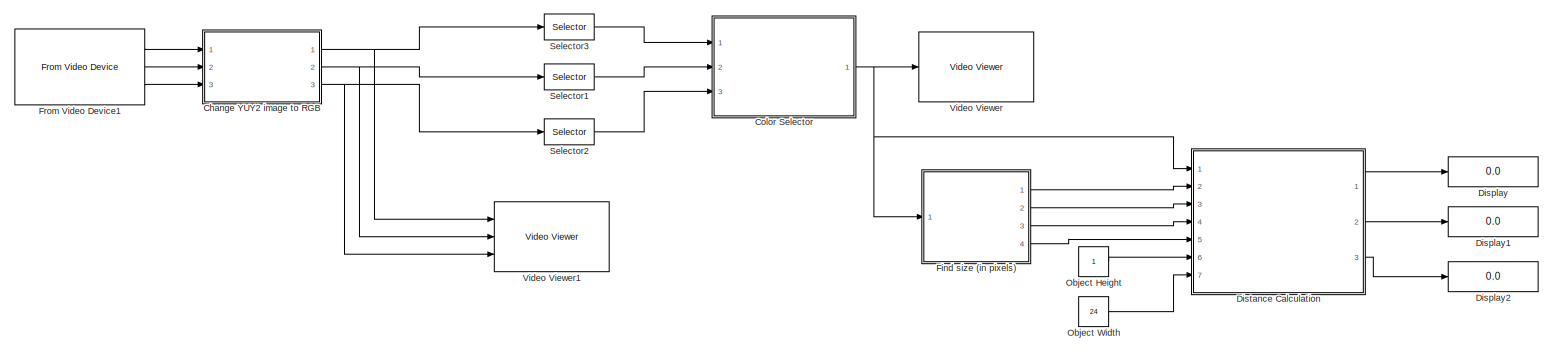
[diagram: root canvas - part 1/1, most of the canvas]
MODEL Local_webcam_test
KIND model
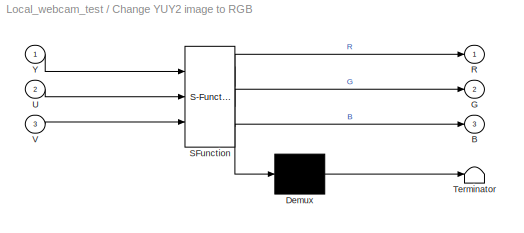
BLOCK [SubSystem] Change YUY2 image to RGB
  ErrorFcn = Stateflow.Translate.translate
  FunctionWithSeparateData = off
  MaskDescription = Embedded MATLAB block
  MaskDisplay = bgColor = Simulink.Root.ColorString2Rgb(get_param(gcbh, 'BackgroundColor')); image(imread('private/eml_membrane_16.png','png','BackgroundColor',bgColor(1:3)),'center'); disp([10 10 'YUY2toRGB']);
  MaskHideContents = off
  MaskIconFrame = on
  MaskIconOpaque = off
  MaskIconRotate = none
  MaskIconUnits = normalized
  MaskPortRotate = default
  MaskSelfModifiable = on
  MaskType = Stateflow
  MinAlgLoopOccurrences = off
  Opaque = off
  PermitHierarchicalResolution = ExplicitOnly
  Ports = [3, 3]
  PropExecContextOutsideSubsystem = off
  RTWSystemCode = Auto
  RequestExecContextInheritance = off
  SFBlockType = MATLAB Function
  SID = 17
  TreatAsAtomicUnit = on
BLOCK [Demux] Change YUY2 image to RGB/ Demux 
  Outputs = 1
  Ports = [1, 1]
  SID = 17::23
BLOCK [S-Function] Change YUY2 image to RGB/ SFunction 
  EnableBusSupport = on
  FunctionName = sf_sfun
  PortCounts = [3 4]
  Ports = [3, 4]
  SID = 17::22
  Tag = Stateflow S-Function Local_webcam_test 1
BLOCK [Terminator] Change YUY2 image to RGB/ Terminator 
  SID = 17::25
BLOCK [Outport] Change YUY2 image to RGB/B
  IconDisplay = Port number
  Port = 3
  SID = 17::19
BLOCK [Outport] Change YUY2 image to RGB/G
  IconDisplay = Port number
  Port = 2
  SID = 17::18
BLOCK [Outport] Change YUY2 image to RGB/R
  IconDisplay = Port number
  SID = 17::5
BLOCK [Inport] Change YUY2 image to RGB/U
  IconDisplay = Port number
  Port = 2
  SID = 17::20
BLOCK [Inport] Change YUY2 image to RGB/V
  IconDisplay = Port number
  Port = 3
  SID = 17::21
BLOCK [Inport] Change YUY2 image to RGB/Y
  IconDisplay = Port number
  SID = 17::1
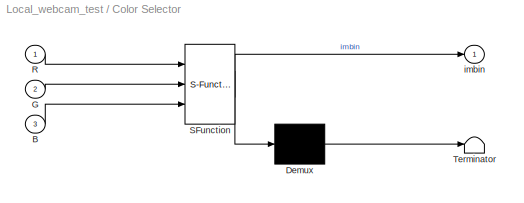
BLOCK [SubSystem] Color Selector
  ErrorFcn = Stateflow.Translate.translate
  FunctionWithSeparateData = off
  MaskDescription = Embedded MATLAB block
  MaskDisplay = bgColor = Simulink.Root.ColorString2Rgb(get_param(gcbh, 'BackgroundColor')); image(imread('private/eml_membrane_16.png','png','BackgroundColor',bgColor(1:3)),'center'); disp([10 10 'color_selection']);
  MaskHideContents = off
  MaskIconFrame = on
  MaskIconOpaque = off
  MaskIconRotate = none
  MaskIconUnits = normalized
  MaskPortRotate = default
  MaskSelfModifiable = on
  MaskType = Stateflow
  MinAlgLoopOccurrences = off
  Opaque = off
  PermitHierarchicalResolution = ExplicitOnly
  Ports = [3, 1]
  PropExecContextOutsideSubsystem = off
  RTWSystemCode = Auto
  RequestExecContextInheritance = off
  SFBlockType = MATLAB Function
  SID = 1
  TreatAsAtomicUnit = on
BLOCK [Demux] Color Selector/ Demux 
  Outputs = 1
  Ports = [1, 1]
  SID = 1::9
BLOCK [S-Function] Color Selector/ SFunction 
  EnableBusSupport = on
  FunctionName = sf_sfun
  PortCounts = [3 2]
  Ports = [3, 2]
  SID = 1::8
  Tag = Stateflow S-Function Local_webcam_test 3
BLOCK [Terminator] Color Selector/ Terminator 
  SID = 1::11
BLOCK [Inport] Color Selector/B
  IconDisplay = Port number
  Port = 3
  SID = 1::3
BLOCK [Inport] Color Selector/G
  IconDisplay = Port number
  Port = 2
  SID = 1::2
BLOCK [Inport] Color Selector/R
  IconDisplay = Port number
  SID = 1::1
BLOCK [Outport] Color Selector/imbin
  IconDisplay = Port number
  SID = 1::7
BLOCK [Display] Display
  Decimation = 1
  Lockdown = off
  Ports = [1]
  SID = 2
BLOCK [Display] Display1
  Decimation = 1
  Lockdown = off
  Ports = [1]
  SID = 3
BLOCK [Display] Display2
  Decimation = 1
  Lockdown = off
  Ports = [1]
  SID = 4
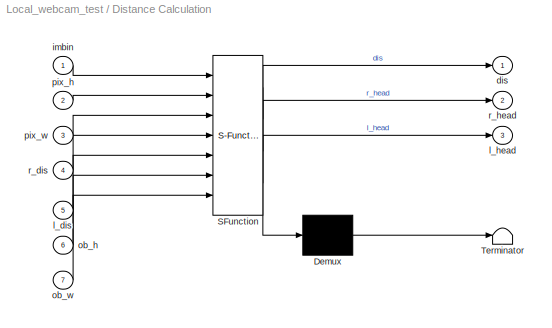
BLOCK [SubSystem] Distance Calculation
  ErrorFcn = Stateflow.Translate.translate
  FunctionWithSeparateData = off
  MaskDescription = Embedded MATLAB block
  MaskDisplay = bgColor = Simulink.Root.ColorString2Rgb(get_param(gcbh, 'BackgroundColor')); image(imread('private/eml_membrane_16.png','png','BackgroundColor',bgColor(1:3)),'center'); disp([10 10 'find_dis']);
  MaskHideContents = off
  MaskIconFrame = on
  MaskIconOpaque = off
  MaskIconRotate = none
  MaskIconUnits = normalized
  MaskPortRotate = default
  MaskSelfModifiable = on
  MaskType = Stateflow
  MinAlgLoopOccurrences = off
  Opaque = off
  PermitHierarchicalResolution = ExplicitOnly
  Ports = [7, 3]
  PropExecContextOutsideSubsystem = off
  RTWSystemCode = Auto
  RequestExecContextInheritance = off
  SFBlockType = MATLAB Function
  SID = 5
  TreatAsAtomicUnit = on
BLOCK [Demux] Distance Calculation/ Demux 
  Outputs = 1
  Ports = [1, 1]
  SID = 5::15
BLOCK [S-Function] Distance Calculation/ SFunction 
  EnableBusSupport = on
  FunctionName = sf_sfun
  PortCounts = [7 4]
  Ports = [7, 4]
  SID = 5::14
  Tag = Stateflow S-Function Local_webcam_test 6
BLOCK [Terminator] Distance Calculation/ Terminator 
  SID = 5::17
BLOCK [Outport] Distance Calculation/dis
  IconDisplay = Port number
  SID = 5::11
BLOCK [Inport] Distance Calculation/imbin
  IconDisplay = Port number
  SID = 5::1
BLOCK [Inport] Distance Calculation/l_dis
  IconDisplay = Port number
  Port = 5
  SID = 5::5
BLOCK [Outport] Distance Calculation/l_head
  IconDisplay = Port number
  Port = 3
  SID = 5::13
BLOCK [Inport] Distance Calculation/ob_h
  IconDisplay = Port number
  Port = 6
  SID = 5::6
BLOCK [Inport] Distance Calculation/ob_w
  IconDisplay = Port number
  Port = 7
  SID = 5::7
BLOCK [Inport] Distance Calculation/pix_h
  IconDisplay = Port number
  Port = 2
  SID = 5::2
BLOCK [Inport] Distance Calculation/pix_w
  IconDisplay = Port number
  Port = 3
  SID = 5::3
BLOCK [Inport] Distance Calculation/r_dis
  IconDisplay = Port number
  Port = 4
  SID = 5::4
BLOCK [Outport] Distance Calculation/r_head
  IconDisplay = Port number
  Port = 2
  SID = 5::12
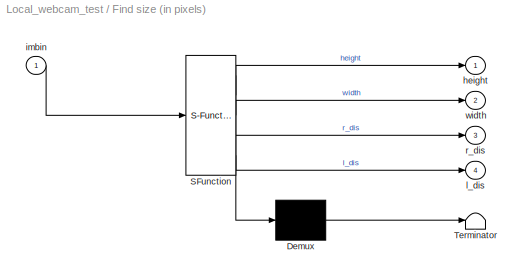
BLOCK [SubSystem] Find size (in pixels)
  ErrorFcn = Stateflow.Translate.translate
  FunctionWithSeparateData = off
  MaskDescription = Embedded MATLAB block
  MaskDisplay = bgColor = Simulink.Root.ColorString2Rgb(get_param(gcbh, 'BackgroundColor')); image(imread('private/eml_membrane_16.png','png','BackgroundColor',bgColor(1:3)),'center'); disp([10 10 'hw_find']);
  MaskHideContents = off
  MaskIconFrame = on
  MaskIconOpaque = off
  MaskIconRotate = none
  MaskIconUnits = normalized
  MaskPortRotate = default
  MaskSelfModifiable = on
  MaskType = Stateflow
  MinAlgLoopOccurrences = off
  Opaque = off
  PermitHierarchicalResolution = ExplicitOnly
  Ports = [1, 4]
  PropExecContextOutsideSubsystem = off
  RTWSystemCode = Auto
  RequestExecContextInheritance = off
  SFBlockType = MATLAB Function
  SID = 6
  TreatAsAtomicUnit = on
BLOCK [Demux] Find size (in pixels)/ Demux 
  Outputs = 1
  Ports = [1, 1]
  SID = 6::10
BLOCK [S-Function] Find size (in pixels)/ SFunction 
  EnableBusSupport = on
  FunctionName = sf_sfun
  PortCounts = [1 5]
  Ports = [1, 5]
  SID = 6::9
  Tag = Stateflow S-Function Local_webcam_test 4
BLOCK [Terminator] Find size (in pixels)/ Terminator 
  SID = 6::12
BLOCK [Outport] Find size (in pixels)/height
  IconDisplay = Port number
  SID = 6::5
BLOCK [Inport] Find size (in pixels)/imbin
  IconDisplay = Port number
  SID = 6::1
BLOCK [Outport] Find size (in pixels)/l_dis
  IconDisplay = Port number
  Port = 4
  SID = 6::8
BLOCK [Outport] Find size (in pixels)/r_dis
  IconDisplay = Port number
  Port = 3
  SID = 6::7
BLOCK [Outport] Find size (in pixels)/width
  IconDisplay = Port number
  Port = 2
  SID = 6::6
BLOCK [Reference] From Video Device1  REF=imaqlib/From Video Device
  BlockHandle = 2599.0059
  CanDoHWTrigger = no
  DataType = uint8
  DevXMLPath = C:\\Program Files<path>
  Device = winvideo 1 (Microsoft LifeCam HD-3000)
  DeviceMenu = winvideo 1 (Microsoft LifeCam HD-3000)
  EnableHWTrigger = off
  EngLibPath = C:\\Program Files<path>
  EngXMLPath = C:\\Program Files<path>
  ObjConstructor = videoinput('winvideo', 1)
  OutputPortsMode = Separate color signals
  Ports = [0, 3]
  ROIColumn = 0
  ROIHeight = 480
  ROIPosition = [0 0 480 640]
  ROIRow = 0
  ROIWidth = 640
  ReturnedColorSpace = YCbCr
  SID = 18
  SampleTime = 1/30
  SourceBlock = imaqlib/From Video Device
  SourceType = From Video Device
  TriggerConfiguration = none/none
  UserData = DataTag0
  UserDataPersistent = on
  VideoFormat = YUY2_640x480
  VideoFormatMenu = YUY2_640x480
  VideoSource = input1
BLOCK [Constant] Object Height
  SID = 8
BLOCK [Constant] Object Width
  SID = 9
  Value = 24
BLOCK [Selector] Selector1
  IndexOptions = Starting index (dialog),Starting index (dialog)
  Indices = 70,1
  InputPortWidth = 3
  NumberOfDimensions = 2
  OutputSizes = 340,640
  Ports = [1, 1]
  SID = 10
BLOCK [Selector] Selector2
  IndexOptions = Starting index (dialog),Starting index (dialog)
  Indices = 70,1
  InputPortWidth = 3
  NumberOfDimensions = 2
  OutputSizes = 340,640
  Ports = [1, 1]
  SID = 11
BLOCK [Selector] Selector3
  IndexOptions = Starting index (dialog),Starting index (dialog)
  Indices = 70,1
  InputPortWidth = 3
  NumberOfDimensions = 2
  OutputSizes = 340,640
  Ports = [1, 1]
  SID = 12
BLOCK [Reference] Video Viewer  REF=visionsinks/Video Viewer
  AxisZoom = on
  FigPos = [840 554 410 300]
  OpenAtMdlStart = on
  Ports = [1]
  SID = 15
  SourceBlock = visionsinks/Video Viewer
  SourceType = Video Viewer
  UserData = DataTag1
  UserDataPersistent = on
  colormapValue = jet(256)
  imagePorts = One multidimensional signal
  inputType = Obsolete7b
  maxInputVal = 255
  minInputVal = 0
  specRange = off
  trueSizedOnce = off
  useColorMap = off
BLOCK [Reference] Video Viewer1  REF=visionsinks/Video Viewer
  AxisZoom = on
  FigPos = [314 546 410 300]
  OpenAtMdlStart = on
  Ports = [3]
  SID = 16
  SourceBlock = visionsinks/Video Viewer
  SourceType = Video Viewer
  UserData = DataTag2
  UserDataPersistent = on
  colormapValue = jet(256)
  imagePorts = Separate color signals
  inputType = Obsolete7b
  maxInputVal = 255
  minInputVal = 0
  specRange = off
  trueSizedOnce = off
  useColorMap = off
LINE Change YUY2 image to RGB/ Demux :1 -> Change YUY2 image to RGB/ Terminator :1
LINE Change YUY2 image to RGB/ SFunction :1 -> Change YUY2 image to RGB/ Demux :1
LINE Change YUY2 image to RGB/ SFunction :2 -> Change YUY2 image to RGB/R:1
LINE Change YUY2 image to RGB/ SFunction :3 -> Change YUY2 image to RGB/G:1
LINE Change YUY2 image to RGB/ SFunction :4 -> Change YUY2 image to RGB/B:1
LINE Change YUY2 image to RGB/U:1 -> Change YUY2 image to RGB/ SFunction :2
LINE Change YUY2 image to RGB/V:1 -> Change YUY2 image to RGB/ SFunction :3
LINE Change YUY2 image to RGB/Y:1 -> Change YUY2 image to RGB/ SFunction :1
NET Change YUY2 image to RGB:1 -> Selector3:1, Video Viewer1:1
NET Change YUY2 image to RGB:2 -> Selector1:1, Video Viewer1:2
NET Change YUY2 image to RGB:3 -> Selector2:1, Video Viewer1:3
LINE Color Selector/ Demux :1 -> Color Selector/ Terminator :1
LINE Color Selector/ SFunction :1 -> Color Selector/ Demux :1
LINE Color Selector/ SFunction :2 -> Color Selector/imbin:1
LINE Color Selector/B:1 -> Color Selector/ SFunction :3
LINE Color Selector/G:1 -> Color Selector/ SFunction :2
LINE Color Selector/R:1 -> Color Selector/ SFunction :1
NET Color Selector:1 -> Distance Calculation:1, Find size (in pixels):1, Video Viewer:1
LINE Distance Calculation/ Demux :1 -> Distance Calculation/ Terminator :1
LINE Distance Calculation/ SFunction :1 -> Distance Calculation/ Demux :1
LINE Distance Calculation/ SFunction :2 -> Distance Calculation/dis:1
LINE Distance Calculation/ SFunction :3 -> Distance Calculation/r_head:1
LINE Distance Calculation/ SFunction :4 -> Distance Calculation/l_head:1
LINE Distance Calculation/imbin:1 -> Distance Calculation/ SFunction :1
LINE Distance Calculation/l_dis:1 -> Distance Calculation/ SFunction :5
LINE Distance Calculation/ob_h:1 -> Distance Calculation/ SFunction :6
LINE Distance Calculation/ob_w:1 -> Distance Calculation/ SFunction :7
LINE Distance Calculation/pix_h:1 -> Distance Calculation/ SFunction :2
LINE Distance Calculation/pix_w:1 -> Distance Calculation/ SFunction :3
LINE Distance Calculation/r_dis:1 -> Distance Calculation/ SFunction :4
LINE Distance Calculation:1 -> Display:1
LINE Distance Calculation:2 -> Display1:1
LINE Distance Calculation:3 -> Display2:1
LINE Find size (in pixels)/ Demux :1 -> Find size (in pixels)/ Terminator :1
LINE Find size (in pixels)/ SFunction :1 -> Find size (in pixels)/ Demux :1
LINE Find size (in pixels)/ SFunction :2 -> Find size (in pixels)/height:1
LINE Find size (in pixels)/ SFunction :3 -> Find size (in pixels)/width:1
LINE Find size (in pixels)/ SFunction :4 -> Find size (in pixels)/r_dis:1
LINE Find size (in pixels)/ SFunction :5 -> Find size (in pixels)/l_dis:1
LINE Find size (in pixels)/imbin:1 -> Find size (in pixels)/ SFunction :1
LINE Find size (in pixels):1 -> Distance Calculation:2
LINE Find size (in pixels):2 -> Distance Calculation:3
LINE Find size (in pixels):3 -> Distance Calculation:4
LINE Find size (in pixels):4 -> Distance Calculation:5
LINE From Video Device1:1 -> Change YUY2 image to RGB:1
LINE From Video Device1:2 -> Change YUY2 image to RGB:2
LINE From Video Device1:3 -> Change YUY2 image to RGB:3
LINE Object Height:1 -> Distance Calculation:6
LINE Object Width:1 -> Distance Calculation:7
LINE Selector1:1 -> Color Selector:2
LINE Selector2:1 -> Color Selector:3
LINE Selector3:1 -> Color Selector:1
note: NET lines group one-source signal fan-out (src -> all destinations, sorted); 1:1 wires keep LINE
CHART Change YUY2 image to RGB states=1 transitions=1
  STATE_LABEL 'eML_blk_kernel()'
CHART Color Selector states=1 transitions=1
  STATE_LABEL 'eML_blk_kernel()'
CHART Find size (in pixels) states=1 transitions=1
  STATE_LABEL 'eML_blk_kernel()'
CHART Distance Calculation states=1 transitions=1
  STATE_LABEL 'eML_blk_kernel()'
note: 3 file-system paths scrubbed to <path> (not preserved elsewhere — flat text is the only slx artifact)
